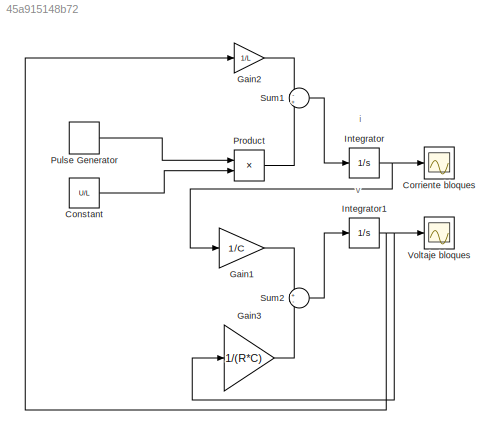
MODEL slx_45a915148b72
KIND model
CONFIG AbsTol = auto
CONFIG EnableMultiTasking = off
CONFIG FixedStep = auto
CONFIG InitFcn = L = 2e-3;\nR = 10;\nC = 10e-6;\nU = 32;
CONFIG MaxStep = auto
CONFIG MinStep = auto
CONFIG RelTol = 1e-3
CONFIG SampleTimeConstraint = Unconstrained
CONFIG SolverName = ode45
CONFIG StartTime = 0.0
CONFIG StopTime = 0.002
BLOCK [Constant] Constant
  Value = U/L
BLOCK [Scope] Corriente bloques
  ActiveDisplayYMaximum = 1.5580842373948807
  ActiveDisplayYMinimum = -0.17312047082165338
  DataLoggingVariableName = ScopeData2
  Floating = off
  GraphicalSettings = {"Style":{"BackgroundColor":[0.12941176470588237,0.12941176470588237,0.12941176470588237],"AxesColor":[0.07058823529411765,0.07058823529411765,0.07058823529411765],"LabelsColor":[0.8509803921568627,0.8509803921568627,0.8509803921568627],"PreserveColors":false,"Visible":[true],"LineStyle":["-"],"LineWidth":[1.5],"BarWidth":[0.9],"LineColor":["auto"],"LineFaceAlpha":[1],"LineEdgeAlpha":[1],"Marker":...<+2007ch>
  MultipleDisplayCache = [{"MaxYLimMag":1.5580842373948807,"MaxYLimReal":1.5580842373948807,"MinYLimMag":0,"MinYLimReal":-0.17312047082165338,"PlotAsMagnitudePhase":false,"ShowGrid":true,"ShowLegend":false,"Title":"%<SignalLabel>","YLabel":""}]
  NumInputPorts = 1
  ScopeFrameLocation = window
  WasSavedAsWebScope = on
  WindowPosition = [2.000000,50.000000,958.000000,1000.000000,]
BLOCK [Gain] Gain1
  Gain = 1/C
BLOCK [Gain] Gain2
  Gain = 1/L
BLOCK [Gain] Gain3
  Gain = 1/(R*C)
BLOCK [Integrator] Integrator
BLOCK [Integrator] Integrator1
BLOCK [Product] Product
BLOCK [DiscretePulseGenerator] Pulse Generator
  Period = 1/100e3
  PulseType = Time based
  PulseWidth = 40
BLOCK [Sum] Sum1
  Inputs = -+
BLOCK [Sum] Sum2
  Inputs = +-
BLOCK [Scope] Voltaje bloques
  ActiveDisplayYMaximum = 15.021686885894953
  ActiveDisplayYMinimum = -1.6690763206549943
  DataLoggingVariableName = ScopeData3
  Floating = off
  GraphicalSettings = {"Style":{"BackgroundColor":[0.12941176470588237,0.12941176470588237,0.12941176470588237],"AxesColor":[0.07058823529411765,0.07058823529411765,0.07058823529411765],"LabelsColor":[0.8509803921568627,0.8509803921568627,0.8509803921568627],"PreserveColors":false,"Visible":[true],"LineStyle":["-"],"LineWidth":[1.5],"BarWidth":[0.9],"LineColor":["auto"],"LineFaceAlpha":[1],"LineEdgeAlpha":[1],"Marker":...<+2007ch>
  MultipleDisplayCache = [{"MaxYLimMag":15.021686885894953,"MaxYLimReal":15.021686885894953,"MinYLimMag":0,"MinYLimReal":-1.6690763206549943,"PlotAsMagnitudePhase":false,"ShowGrid":true,"ShowLegend":false,"Title":"%<SignalLabel>","YLabel":""}]
  NumInputPorts = 1
  ScopeFrameLocation = window
  WasSavedAsWebScope = on
  WindowPosition = [2.000000,50.000000,958.000000,1000.000000,]
ANNOTATION (root): i
ANNOTATION (root): v
LINE Constant:1 -> Product:2
LINE Gain1:1 -> Sum2:1
LINE Gain2:1 -> Sum1:1
LINE Gain3:1 -> Sum2:2
NET Integrator1:1 -> Gain2:1, Gain3:1, Voltaje bloques:1
NET Integrator:1 -> Corriente bloques:1, Gain1:1
LINE Product:1 -> Sum1:2
LINE Pulse Generator:1 -> Product:1
LINE Sum1:1 -> Integrator:1
LINE Sum2:1 -> Integrator1:1
note: NET lines group one-source signal fan-out (src -> all destinations, sorted); 1:1 wires keep LINE
